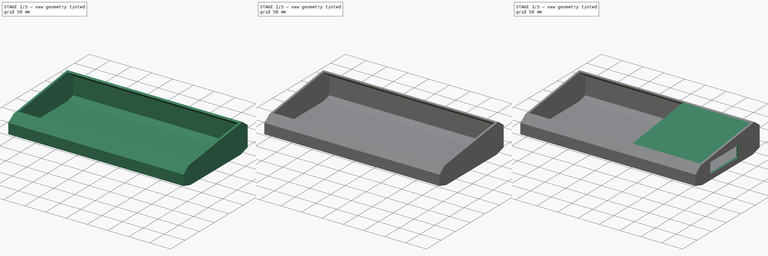
[diagram: build sequence overview — one tinted view per stage of 3, left to right]
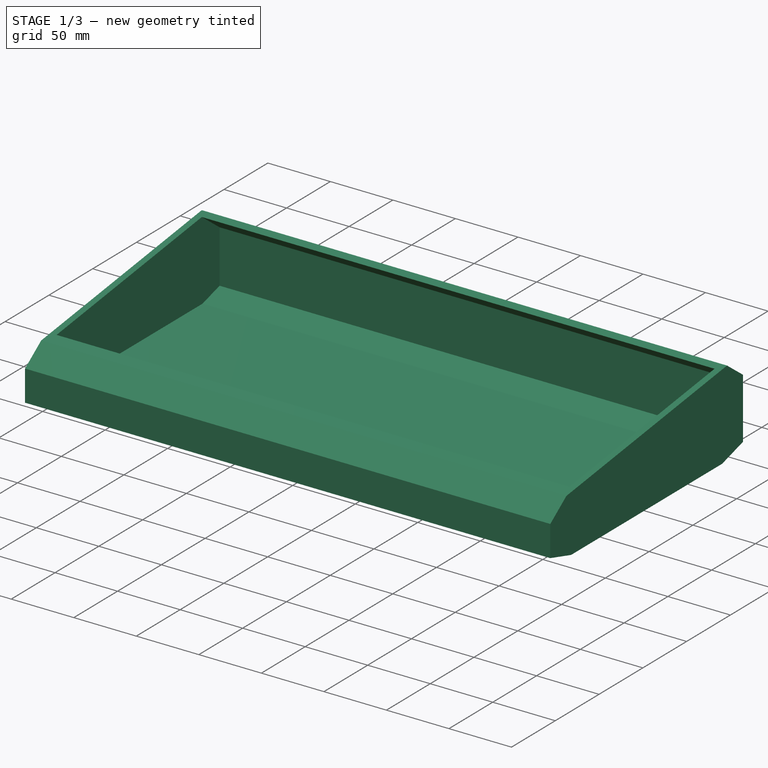
[diagram: stage 1 of 3 — iso view after this stage's code; geometry added in this stage tinted green]
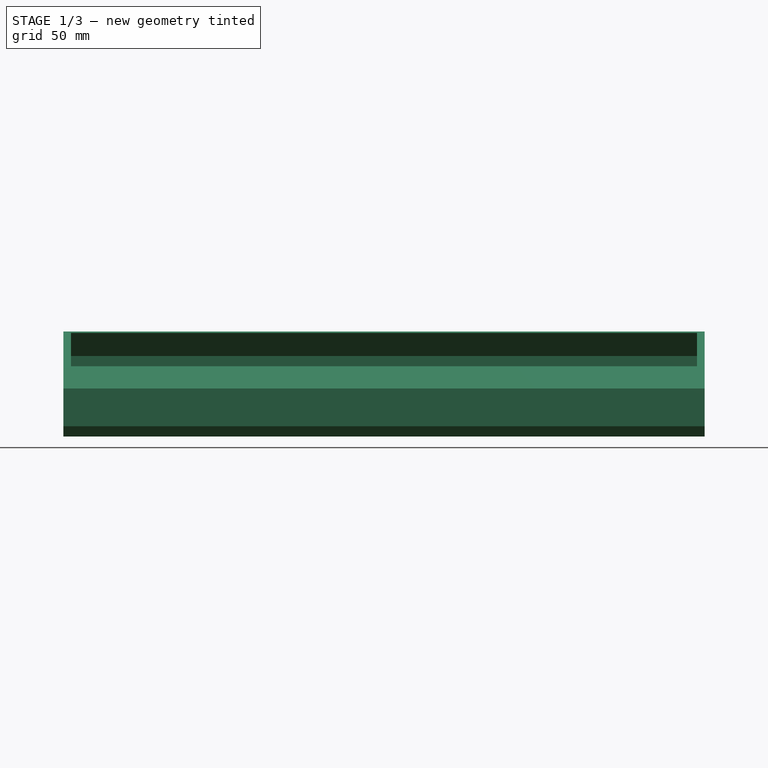
[diagram: stage 1 of 3 — front view after this stage's code; geometry added in this stage tinted green]
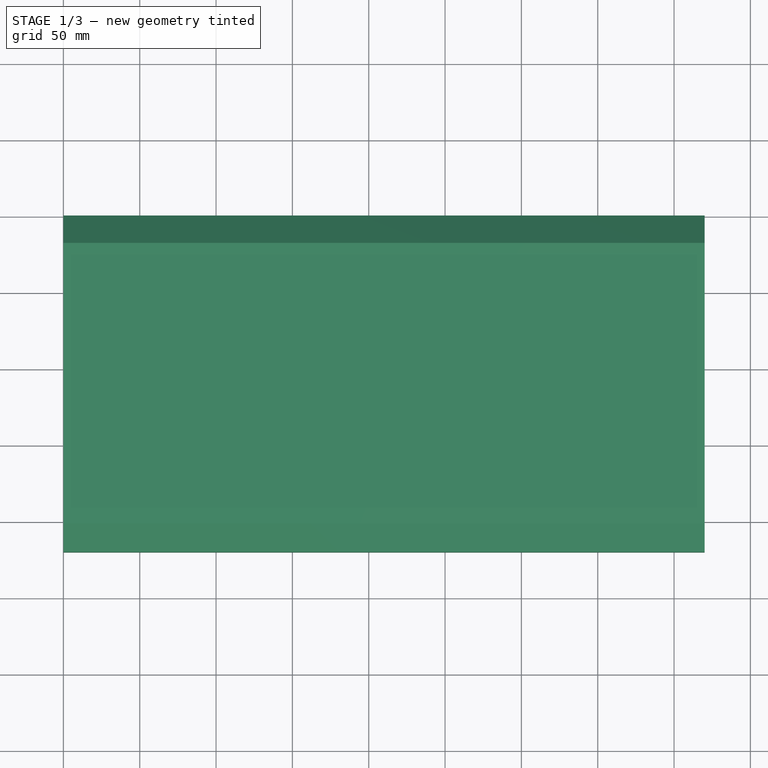
[diagram: stage 1 of 3 — top view after this stage's code; geometry added in this stage tinted green]
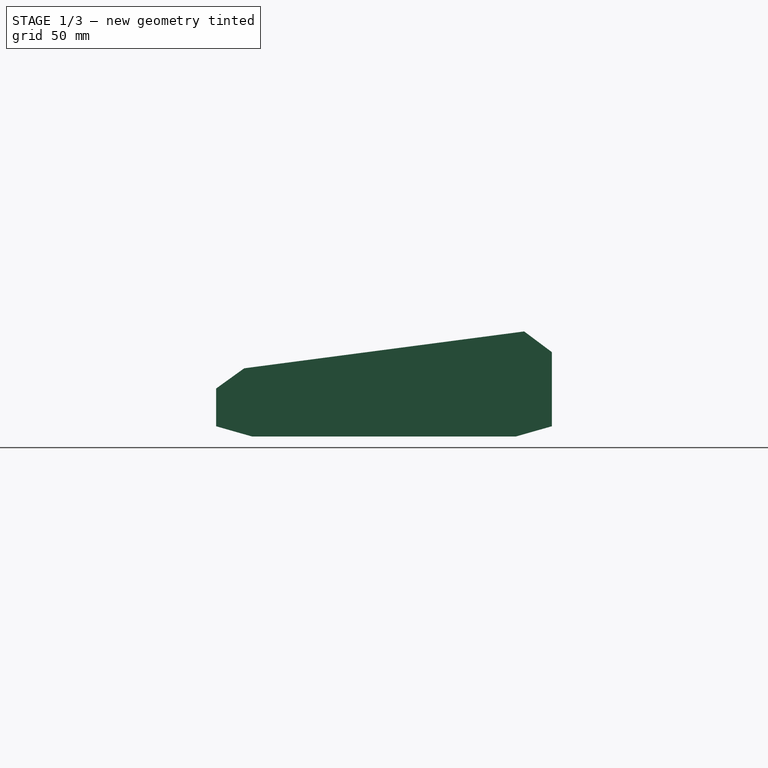
[diagram: stage 1 of 3 — right view after this stage's code; geometry added in this stage tinted green]
FCSTD DOCUMENT  (FreeCAD 0.18R16131 (Git))
Label: DeckShell
License: All rights reserved
LicenseURL: http://en.wikipedia.org/wiki/All_rights_reserved
objects: Sketcher::SketchObject×4, PartDesign::Pad×2, PartDesign::Pocket×2, PartDesign::Thickness×1, PartDesign::Body×1
note: 14 computed .brp shape members not serialized (recipe doc carries the construction recipe); baked Part::Feature solids carry a one-line shape summary decoded from their .brp

FEATURE [Sketcher::SketchObject] Sketch
  MapMode = 5
  Placement = pos=(0,0,0) rot=(0.57735,0.57735,0.57735;2.0944rad)
  Support = -> [YZ_Plane]
  sketch-geometry (13):
    g0: LineSegment StartX=-196.254 StartY=0 StartZ=0 EndX=-23.7461 EndY=0 EndZ=0
    g1: LineSegment StartX=-23.7461 StartY=0 StartZ=0 EndX=0 EndY=6.75528 EndZ=0
    g2: LineSegment StartX=0 StartY=6.75528 StartZ=0 EndX=0 EndY=55.2716 EndZ=0
    g3: LineSegment StartX=0 StartY=55.2716 StartZ=0 EndX=-18.1743 EndY=68.8479 EndZ=0
    g4: LineSegment StartX=-18.1743 StartY=68.8479 StartZ=0 EndX=-201.592 EndY=44.7006 EndZ=0
    g5: LineSegment StartX=-201.592 StartY=44.7006 StartZ=0 EndX=-220 EndY=31.4435 EndZ=0
    g6: LineSegment StartX=-220 StartY=31.4435 StartZ=0 EndX=-220 EndY=6.75528 EndZ=0
    g7: LineSegment StartX=-220 StartY=6.75528 StartZ=0 EndX=-196.254 EndY=9e-16 EndZ=0
    g8: ArcOfCircle [constr] CenterX=-201.592 CenterY=44.7006 CenterZ=0 NormalX=0 NormalY=0 NormalZ=1 AngleXU=0 Radius=10 StartAngle=3.76572 EndAngle=6.41409
    g9: ArcOfCircle [constr] CenterX=-18.1743 CenterY=68.8479 CenterZ=0 NormalX=0 NormalY=0 NormalZ=1 AngleXU=0 Radius=10 StartAngle=3.27249 EndAngle=5.6416
    g10: LineSegment [constr] StartX=-197.023 StartY=10 StartZ=0 EndX=-13.6058 EndY=34.1473 EndZ=0
    g11: LineSegment [constr] StartX=-18.1743 StartY=68.8479 StartZ=0 EndX=-13.6058 EndY=34.1473 EndZ=0
    g12: LineSegment [constr] StartX=-201.592 StartY=44.7006 StartZ=0 EndX=-197.023 EndY=10 EndZ=0
  constraints (41):
    c: Coincident(g0,g1)
    c: Coincident(g1,g2)
    c: Coincident(g2,g3)
    c: Coincident(g3,g4)
    c: Coincident(g4,g5)
    c: Coincident(g5,g6)
    c: Coincident(g6,g7)
    c: Coincident(g7,g0)
    c: Vertical(g2)
    c: DistanceX(g1,g-1) = 0
    c: Horizontal(g0)
    c: Vertical(g6)
    c: Distance(g4) = 185
    c: DistanceX(g6,g1) = 220
    c: DistanceY(g-1,g0) = 0
    c: Coincident(g4,g8)
    c: PointOnObject(g8,g5)
    c: PointOnObject(g8,g4)
    c: Radius(g8) = 10
    c: DistanceY(g1,g6) = 0
    c: PointOnObject(g9,g4)
    c: PointOnObject(g9,g3)
    c: Coincident(g3,g9)
    c: Radius(g9) = 10
    c: Equal(g5,g3)
    c: Parallel(g4,g10)
    c: DistanceY(g0,g10) = 10
    c: Coincident(g10,g11)
    c: Perpendicular(g11,g10)
    c: PointOnObject(g11,g4)
    c: Distance(g11) = 35
    c: Coincident(g12,g10)
    c: Perpendicular(g12,g10)
    c: Distance(g10) = 185
    c: Coincident(g4,g12)
    c: Equal(g1,g7)
    c: Angle(g6,g5) = 2.19493
    c: Angle(g3,g2) = 2.21238
    c: Angle(g0,g4) = 0.1309
    c: Equal(g6,g7)
    c: Angle(g1,g0) = 2.86443
FEATURE [PartDesign::Pad] Pad
  Length = 420
  Length2 = 100
  Placement = pos=(0,0,0) rot=(0.57735,0.57735,0.57735;2.0944rad)
  Profile = -> Sketch
  Type = 0
FEATURE [Sketcher::SketchObject] Sketch001
  ExternalGeometry = -> [Pad]
  MapMode = 5
  Placement = pos=(-2.33e-14,-9.21921,70.0269) rot=(0.065264,0.065264,-0.995732;1.57507rad)
  Support = -> [Pad]
  sketch-geometry (4):
    g0: LineSegment StartX=14.0323 StartY=415 StartZ=0 EndX=189.032 EndY=415 EndZ=0
    g1: LineSegment StartX=189.032 StartY=415 StartZ=0 EndX=189.032 EndY=5 EndZ=0
    g2: LineSegment StartX=189.032 StartY=5 StartZ=0 EndX=14.0323 EndY=5 EndZ=0
    g3: LineSegment StartX=14.0323 StartY=5 StartZ=0 EndX=14.0323 EndY=415 EndZ=0
  constraints (12):
    c: Coincident(g0,g1)
    c: Coincident(g1,g2)
    c: Coincident(g2,g3)
    c: Coincident(g3,g0)
    c: Horizontal(g0)
    c: Horizontal(g2)
    c: Vertical(g1)
    c: Vertical(g3)
    c: DistanceX(g0,g-4) = 5
    c: DistanceX(g-3,g2) = 5
    c: DistanceY(g0,g-3) = 5
    c: DistanceY(g-3,g2) = 5
FEATURE [PartDesign::Thickness] Thickness
  Base = -> Pad [Face5]
  BaseFeature = -> Pad
  Join = 1
  Mode = 0
  Reversed = true
  Value = 5
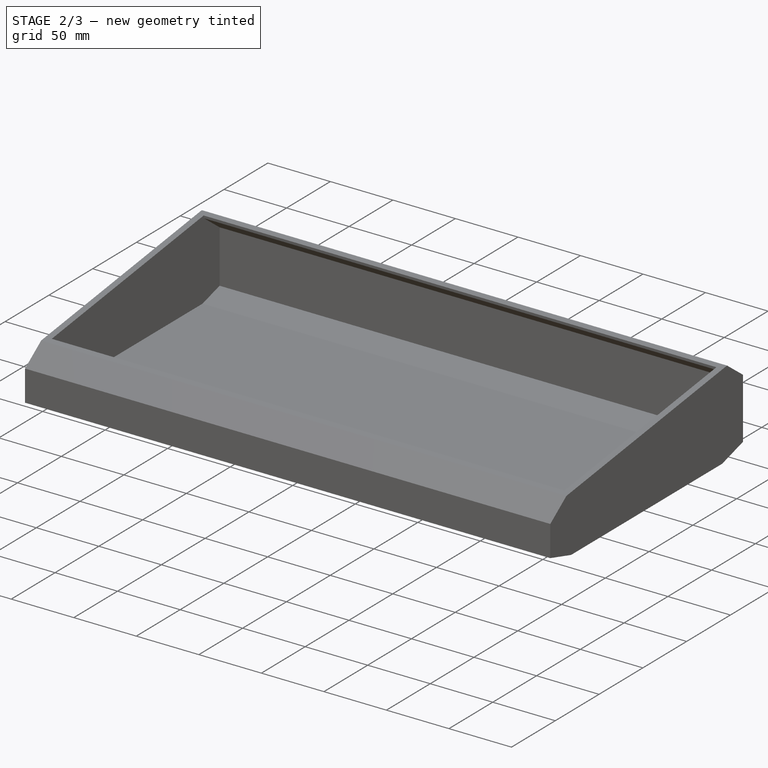
[diagram: stage 2 of 3 — iso view after this stage's code; geometry added in this stage tinted green]
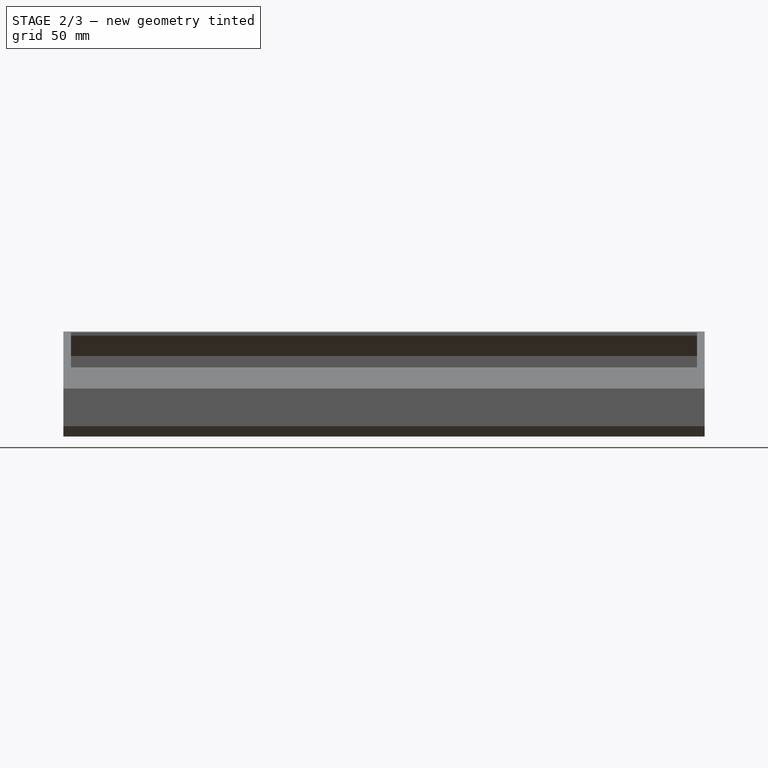
[diagram: stage 2 of 3 — front view after this stage's code; geometry added in this stage tinted green]
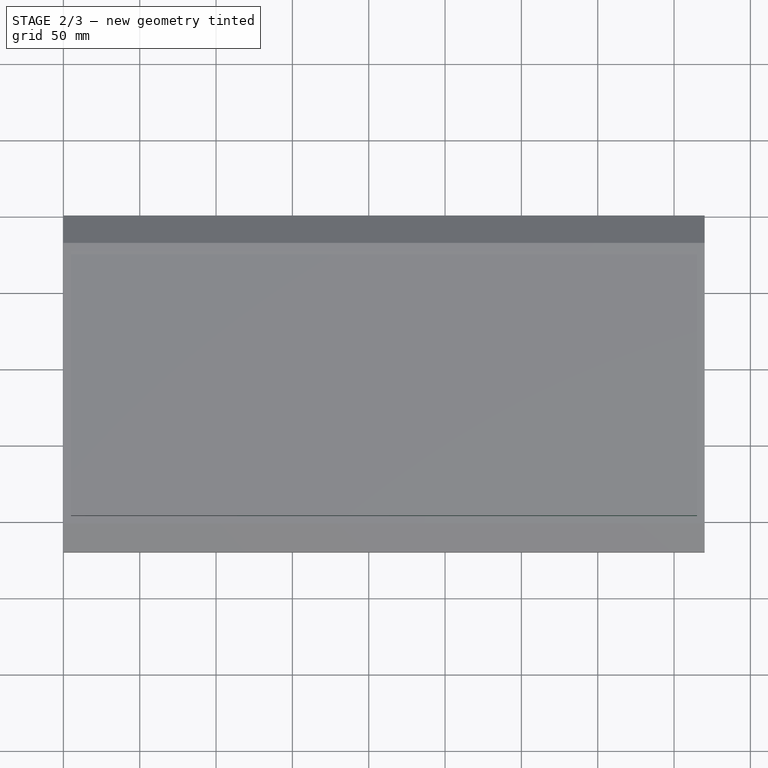
[diagram: stage 2 of 3 — top view after this stage's code; geometry added in this stage tinted green]
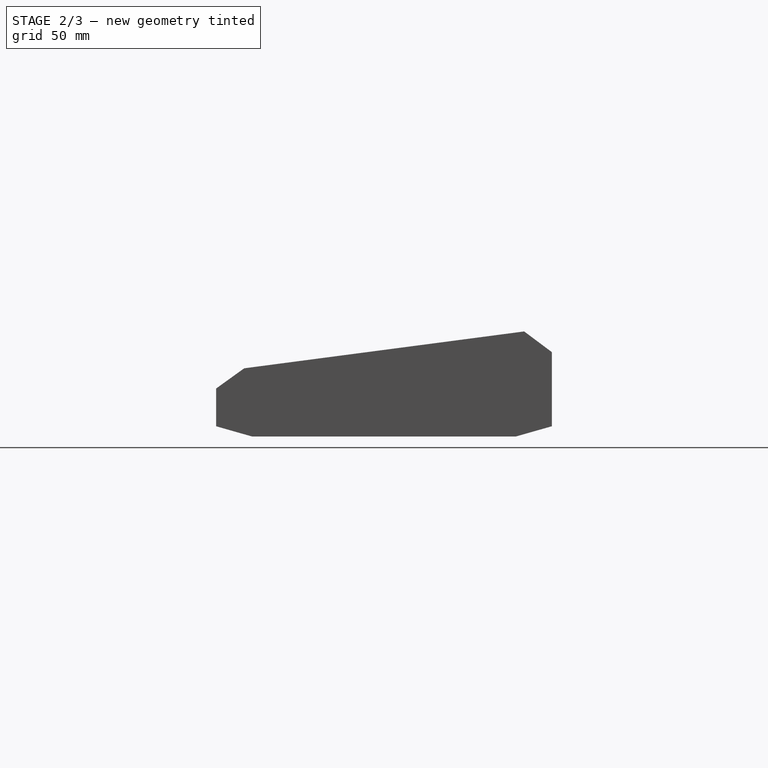
[diagram: stage 2 of 3 — right view after this stage's code; geometry added in this stage tinted green]
FEATURE [PartDesign::Pocket] Pocket
  BaseFeature = -> Thickness
  Length = 13
  Length2 = 100
  Profile = -> Sketch001
  Type = 0
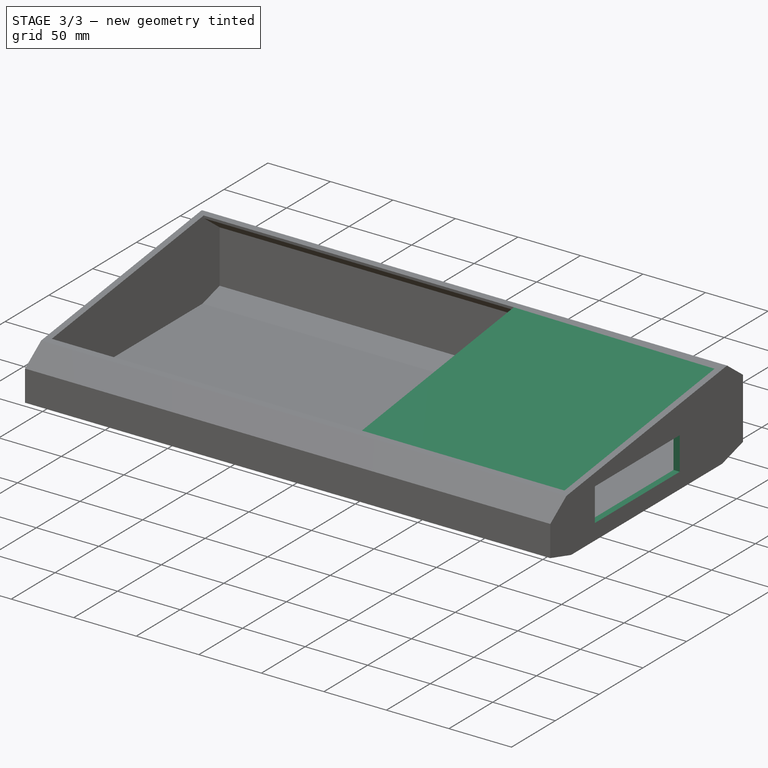
[diagram: stage 3 of 3 — iso view after this stage's code; geometry added in this stage tinted green]
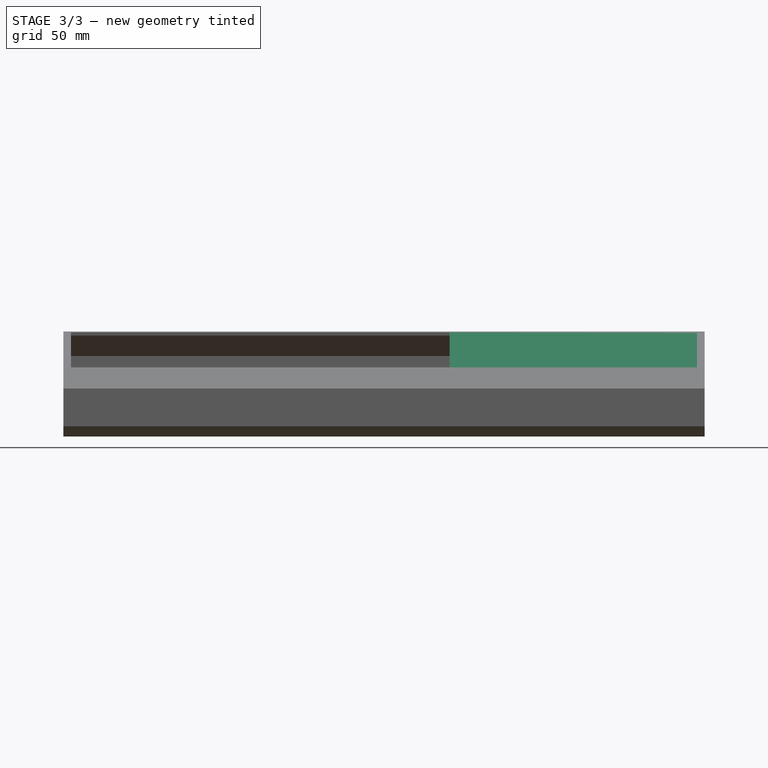
[diagram: stage 3 of 3 — front view after this stage's code; geometry added in this stage tinted green]
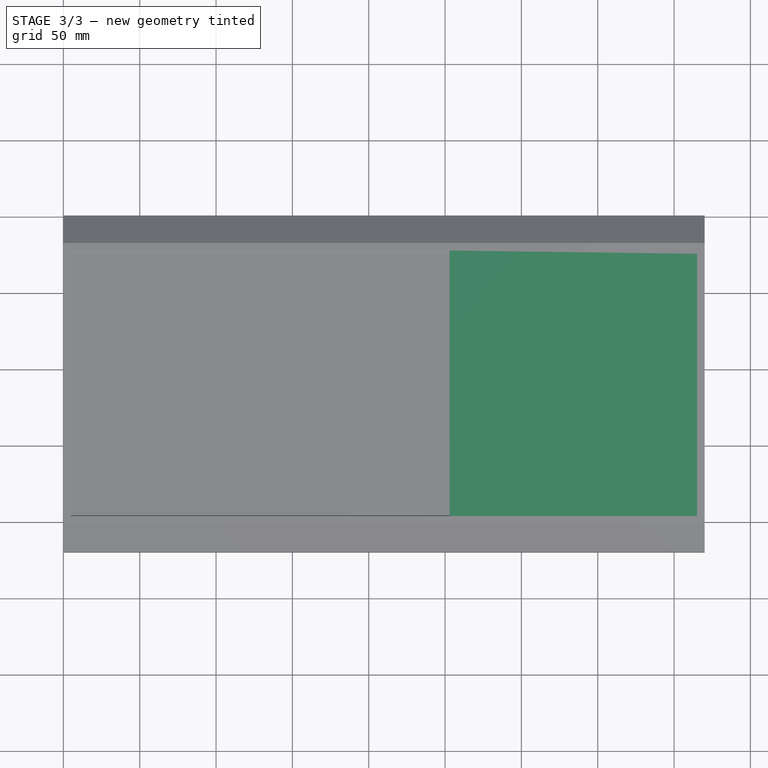
[diagram: stage 3 of 3 — top view after this stage's code; geometry added in this stage tinted green]
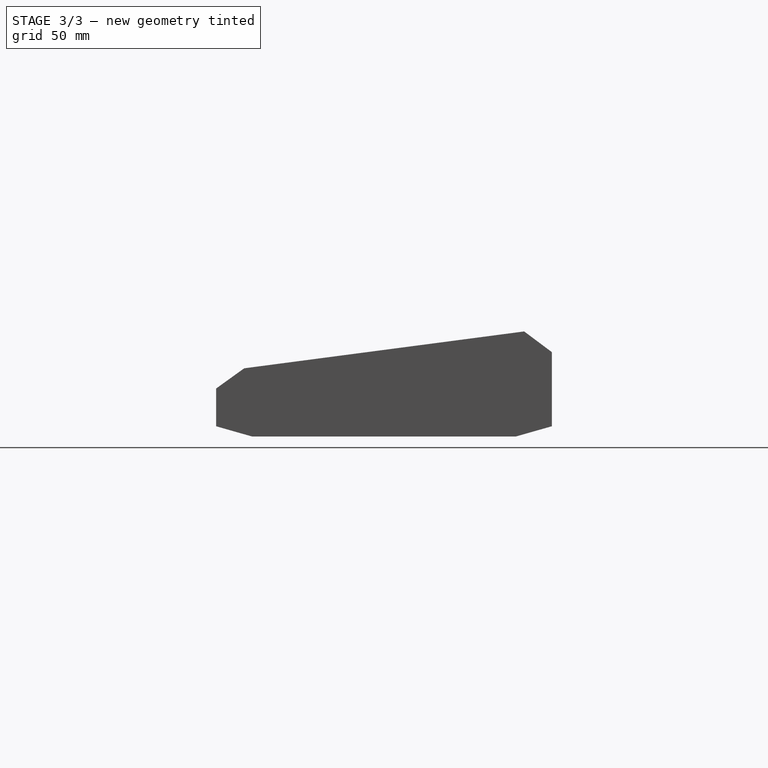
[diagram: stage 3 of 3 — right view after this stage's code; geometry added in this stage tinted green]
FEATURE [Sketcher::SketchObject] Sketch002
  MapMode = 5
  Placement = pos=(420,-9.24e-14,9.24e-14) rot=(0.57735,0.57735,0.57735;2.0944rad)
  Support = -> [Pocket]
  sketch-geometry (4):
    g0: LineSegment StartX=-169.104 StartY=39.1784 StartZ=0 EndX=-72.1741 EndY=39.1784 EndZ=0
    g1: LineSegment StartX=-72.1741 StartY=39.1784 StartZ=0 EndX=-72.1741 EndY=12.6998 EndZ=0
    g2: LineSegment StartX=-72.1741 StartY=12.6998 StartZ=0 EndX=-169.104 EndY=12.6998 EndZ=0
    g3: LineSegment StartX=-169.104 StartY=12.6998 StartZ=0 EndX=-169.104 EndY=39.1784 EndZ=0
  constraints (8):
    c: Coincident(g0,g1)
    c: Coincident(g1,g2)
    c: Coincident(g2,g3)
    c: Coincident(g3,g0)
    c: Horizontal(g0)
    c: Horizontal(g2)
    c: Vertical(g1)
    c: Vertical(g3)
FEATURE [PartDesign::Pocket] Pocket001
  BaseFeature = -> Pocket
  Length = 8
  Length2 = 100
  Profile = -> Sketch002
  Type = 0
FEATURE [Sketcher::SketchObject] Sketch003
  ExternalGeometry = -> [Pocket001]
  MapMode = 5
  Placement = pos=(-3.1e-15,-13.9123,-1.83159) rot=(1,0,0;1.7017rad)
  Support = -> [Pocket001]
  sketch-geometry (4):
    g0: LineSegment StartX=253 StartY=70.6311 StartZ=0 EndX=415 EndY=70.6311 EndZ=0
    g1: LineSegment StartX=415 StartY=70.6311 StartZ=0 EndX=415 EndY=68.5221 EndZ=0
    g2: LineSegment StartX=415 StartY=68.5221 StartZ=0 EndX=253 EndY=68.5221 EndZ=0
    g3: LineSegment StartX=253 StartY=68.5221 StartZ=0 EndX=253 EndY=70.6311 EndZ=0
  constraints (10):
    c: Coincident(g0,g1)
    c: Coincident(g1,g2)
    c: Coincident(g2,g3)
    c: Coincident(g3,g0)
    c: Horizontal(g0)
    c: Horizontal(g2)
    c: Vertical(g3)
    c: Coincident(g0,g-3)
    c: Coincident(g1,g-4)
    c: DistanceX(g-4,g2) = 248
FEATURE [PartDesign::Pad] Pad001
  BaseFeature = -> Pocket001
  Length = 180
  Length2 = 100
  Profile = -> Sketch003
  Type = 0
FEATURE [PartDesign::Body] Body
  Group = -> [Sketch,Pad,Sketch001,Thickness,Pocket,Sketch002,Pocket001,Sketch003,Pad001]
  Origin = -> Origin
  Tip = -> Pad001
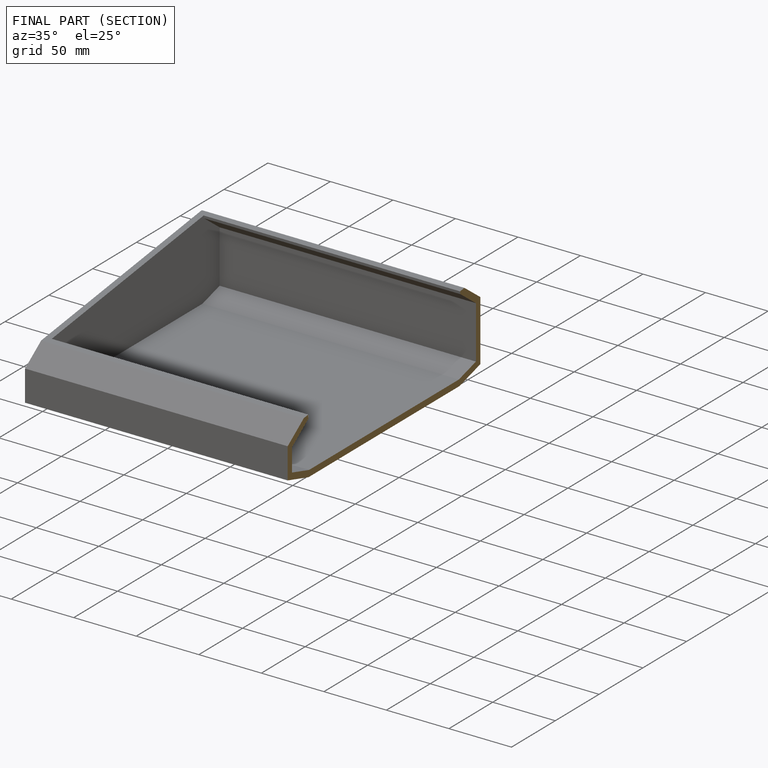
[diagram: finished part — half-section view (interior)]
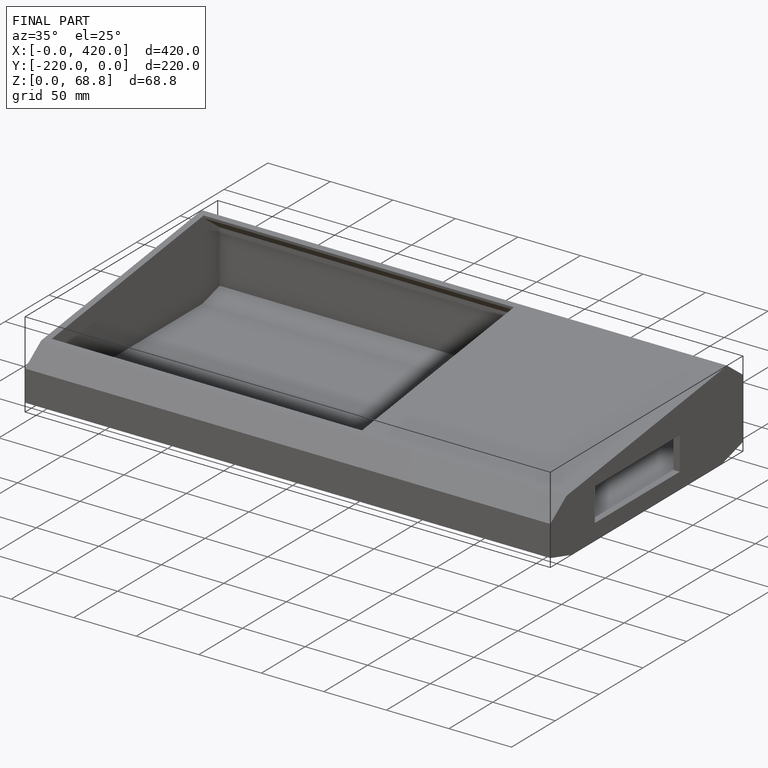
[diagram: finished part — iso view with bounding-box wireframe]
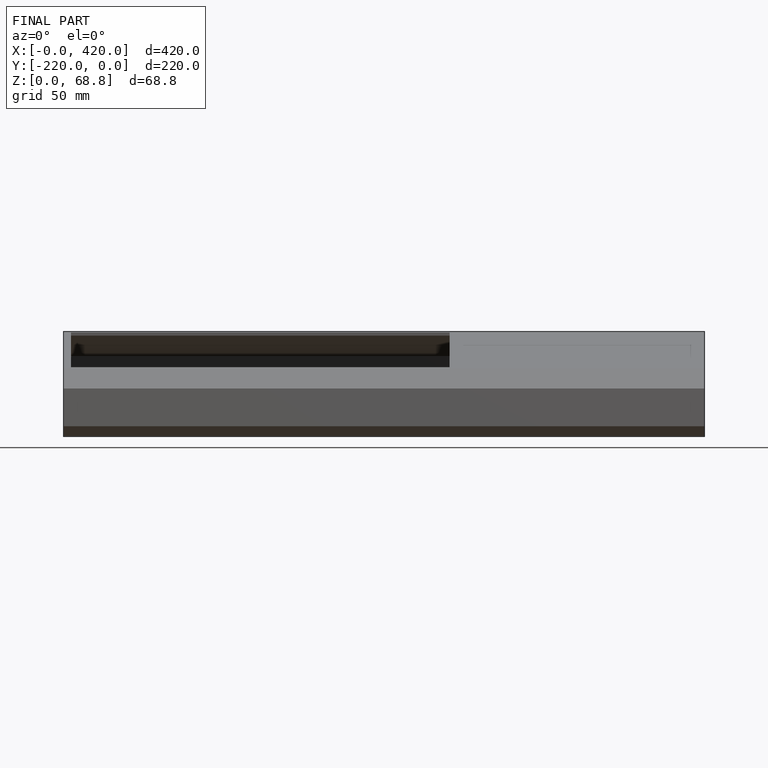
[diagram: finished part — front view with bounding-box wireframe]
